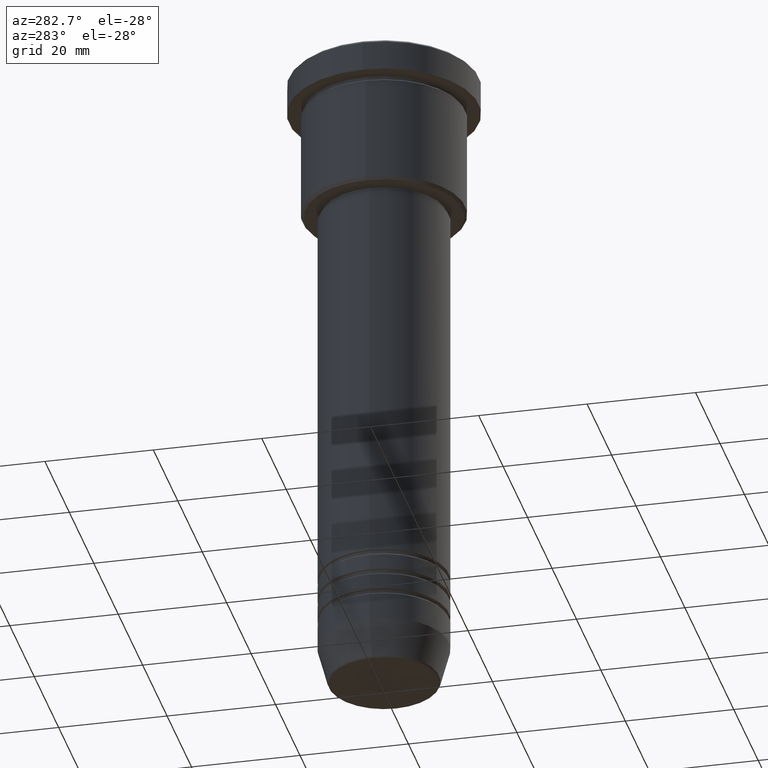
[diagram: clean part render]
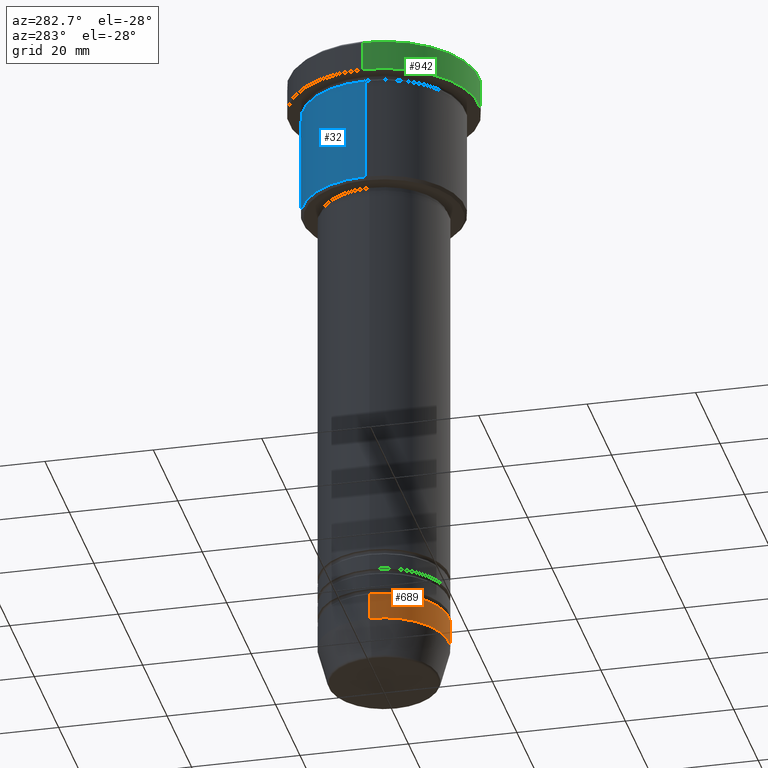
[diagram: same view with three faces highlighted in distinct colors, each labeled with its STEP entity id]
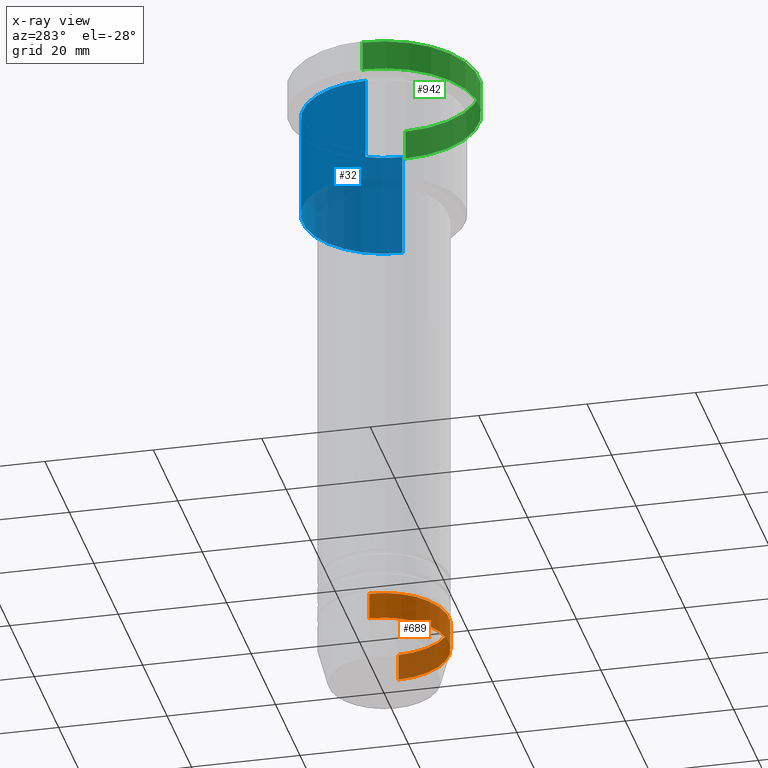
[diagram: x-ray of the same camera — body ghosted, the three highlighted faces saturated]
A machine part, auxiliary view with three faces highlighted in distinct colors.
The next image is the same camera in x-ray (body ghosted, the three faces saturated) — at least one of them is partly hidden behind the body in this view.
Their STEP definitions:

[orange] entity #689 — the highlighted cylindrical surface (partial cylindrical patch) has radius 12 mm, axis along (-0, -0, 1).
#13 = CARTESIAN_POINT ( 'NONE',  ( 0.000000000000000000, 0.000000000000000000, -115.0000000000000000 ) ) ;
#47 = EDGE_CURVE ( 'NONE', #1153, #135, #955, .T. ) ;
#76 = EDGE_CURVE ( 'NONE', #223, #233, #1120, .T. ) ;
#113 = CARTESIAN_POINT ( 'NONE',  ( -12.00000000000000000, 1.469576158976823947E-15, -115.0000000000000000 ) ) ;
#116 = AXIS2_PLACEMENT_3D ( 'NONE', #13, #914, #447 ) ;
#117 = VECTOR ( 'NONE', #609, 1000.000000000000000 ) ;
#135 = VERTEX_POINT ( 'NONE', #1179 ) ;
#223 = VERTEX_POINT ( 'NONE', #113 ) ;
#233 = VERTEX_POINT ( 'NONE', #391 ) ;
#279 = DIRECTION ( 'NONE',  ( -0.000000000000000000, -0.000000000000000000, 1.000000000000000000 ) ) ;
#349 = LINE ( 'NONE', #1095, #647 ) ;
#352 = DIRECTION ( 'NONE',  ( -0.000000000000000000, -0.000000000000000000, 1.000000000000000000 ) ) ;
#363 = CYLINDRICAL_SURFACE ( 'NONE', #371, 12.00000000000000000 ) ;
#371 = AXIS2_PLACEMENT_3D ( 'NONE', #452, #824, #904 ) ;
#391 = CARTESIAN_POINT ( 'NONE',  ( 12.00000000000000000, 0.000000000000000000, -115.0000000000000000 ) ) ;
#447 = DIRECTION ( 'NONE',  ( 1.000000000000000000, 0.000000000000000000, 0.000000000000000000 ) ) ;
#452 = CARTESIAN_POINT ( 'NONE',  ( 0.000000000000000000, 0.000000000000000000, 0.000000000000000000 ) ) ;
#529 = EDGE_LOOP ( 'NONE', ( #1170, #1137, #1057, #768 ) ) ;
#558 = EDGE_CURVE ( 'NONE', #233, #135, #1131, .T. ) ;
#609 = DIRECTION ( 'NONE',  ( -0.000000000000000000, -0.000000000000000000, 1.000000000000000000 ) ) ;
#647 = VECTOR ( 'NONE', #279, 1000.000000000000000 ) ;
#681 = AXIS2_PLACEMENT_3D ( 'NONE', #812, #352, #1011 ) ;
#689 = ADVANCED_FACE ( 'NONE', ( #728 ), #363, .T. ) ;
#728 = FACE_OUTER_BOUND ( 'NONE', #529, .T. ) ;
#732 = EDGE_CURVE ( 'NONE', #223, #1153, #349, .T. ) ;
#768 = ORIENTED_EDGE ( 'NONE', *, *, #47, .F. ) ;
#788 = CARTESIAN_POINT ( 'NONE',  ( 12.00000000000000000, 0.000000000000000000, 0.000000000000000000 ) ) ;
#812 = CARTESIAN_POINT ( 'NONE',  ( 0.000000000000000000, 0.000000000000000000, -110.0000000000000142 ) ) ;
#824 = DIRECTION ( 'NONE',  ( -0.000000000000000000, -0.000000000000000000, 1.000000000000000000 ) ) ;
#904 = DIRECTION ( 'NONE',  ( 1.000000000000000000, 0.000000000000000000, 0.000000000000000000 ) ) ;
#914 = DIRECTION ( 'NONE',  ( -0.000000000000000000, -0.000000000000000000, 1.000000000000000000 ) ) ;
#955 = CIRCLE ( 'NONE', #681, 12.00000000000000000 ) ;
#1011 = DIRECTION ( 'NONE',  ( 1.000000000000000000, 0.000000000000000000, 0.000000000000000000 ) ) ;
#1057 = ORIENTED_EDGE ( 'NONE', *, *, #558, .T. ) ;
#1095 = CARTESIAN_POINT ( 'NONE',  ( -12.00000000000000000, 1.469576158976823947E-15, 0.000000000000000000 ) ) ;
#1120 = CIRCLE ( 'NONE', #116, 12.00000000000000000 ) ;
#1131 = LINE ( 'NONE', #788, #117 ) ;
#1137 = ORIENTED_EDGE ( 'NONE', *, *, #76, .T. ) ;
#1139 = CARTESIAN_POINT ( 'NONE',  ( -12.00000000000000000, 1.469576158976823947E-15, -110.0000000000000142 ) ) ;
#1153 = VERTEX_POINT ( 'NONE', #1139 ) ;
#1170 = ORIENTED_EDGE ( 'NONE', *, *, #732, .F. ) ;
#1179 = CARTESIAN_POINT ( 'NONE',  ( 12.00000000000000000, 0.000000000000000000, -110.0000000000000142 ) ) ;

[blue] entity #32 — the highlighted cylindrical surface (partial cylindrical patch) has radius 15 mm, axis along (-0, -0, 1).
#2 = DIRECTION ( 'NONE',  ( -0.000000000000000000, -0.000000000000000000, 1.000000000000000000 ) ) ;
#9 = DIRECTION ( 'NONE',  ( -0.000000000000000000, -0.000000000000000000, 1.000000000000000000 ) ) ;
#32 = ADVANCED_FACE ( 'NONE', ( #1176 ), #462, .T. ) ;
#38 = ORIENTED_EDGE ( 'NONE', *, *, #986, .T. ) ;
#77 = LINE ( 'NONE', #1169, #256 ) ;
#170 = VERTEX_POINT ( 'NONE', #668 ) ;
#175 = VERTEX_POINT ( 'NONE', #760 ) ;
#186 = CARTESIAN_POINT ( 'NONE',  ( 0.000000000000000000, 0.000000000000000000, 0.000000000000000000 ) ) ;
#245 = ORIENTED_EDGE ( 'NONE', *, *, #764, .F. ) ;
#256 = VECTOR ( 'NONE', #539, 1000.000000000000000 ) ;
#276 = CIRCLE ( 'NONE', #393, 15.00000000000000000 ) ;
#277 = AXIS2_PLACEMENT_3D ( 'NONE', #543, #2, #547 ) ;
#303 = CIRCLE ( 'NONE', #277, 15.00000000000000000 ) ;
#368 = DIRECTION ( 'NONE',  ( 1.000000000000000000, 0.000000000000000000, 0.000000000000000000 ) ) ;
#385 = DIRECTION ( 'NONE',  ( -0.000000000000000000, -0.000000000000000000, 1.000000000000000000 ) ) ;
#393 = AXIS2_PLACEMENT_3D ( 'NONE', #589, #949, #565 ) ;
#462 = CYLINDRICAL_SURFACE ( 'NONE', #629, 15.00000000000000000 ) ;
#517 = ORIENTED_EDGE ( 'NONE', *, *, #993, .T. ) ;
#539 = DIRECTION ( 'NONE',  ( -0.000000000000000000, -0.000000000000000000, 1.000000000000000000 ) ) ;
#543 = CARTESIAN_POINT ( 'NONE',  ( 0.000000000000000000, 0.000000000000000000, -6.999999999999995559 ) ) ;
#547 = DIRECTION ( 'NONE',  ( 1.000000000000000000, 0.000000000000000000, 0.000000000000000000 ) ) ;
#565 = DIRECTION ( 'NONE',  ( -1.000000000000000000, 0.000000000000000000, 0.000000000000000000 ) ) ;
#577 = CARTESIAN_POINT ( 'NONE',  ( -15.00000000000000000, 1.836970198721029589E-15, 0.000000000000000000 ) ) ;
#589 = CARTESIAN_POINT ( 'NONE',  ( 0.000000000000000000, 0.000000000000000000, -26.49999999999998224 ) ) ;
#629 = AXIS2_PLACEMENT_3D ( 'NONE', #186, #9, #368 ) ;
#668 = CARTESIAN_POINT ( 'NONE',  ( 15.00000000000000000, 0.000000000000000000, -6.999999999999995559 ) ) ;
#752 = EDGE_LOOP ( 'NONE', ( #517, #38, #1061, #245 ) ) ;
#760 = CARTESIAN_POINT ( 'NONE',  ( -15.00000000000000000, 1.836970198721029589E-15, -6.999999999999995559 ) ) ;
#761 = LINE ( 'NONE', #577, #780 ) ;
#764 = EDGE_CURVE ( 'NONE', #789, #170, #77, .T. ) ;
#780 = VECTOR ( 'NONE', #385, 1000.000000000000000 ) ;
#789 = VERTEX_POINT ( 'NONE', #1000 ) ;
#949 = DIRECTION ( 'NONE',  ( -0.000000000000000000, -0.000000000000000000, 1.000000000000000000 ) ) ;
#978 = CARTESIAN_POINT ( 'NONE',  ( -15.00000000000000000, 1.836970198721029589E-15, -26.49999999999998224 ) ) ;
#986 = EDGE_CURVE ( 'NONE', #1157, #175, #761, .T. ) ;
#993 = EDGE_CURVE ( 'NONE', #789, #1157, #276, .T. ) ;
#1000 = CARTESIAN_POINT ( 'NONE',  ( 15.00000000000000000, 0.000000000000000000, -26.49999999999998224 ) ) ;
#1025 = EDGE_CURVE ( 'NONE', #170, #175, #303, .T. ) ;
#1061 = ORIENTED_EDGE ( 'NONE', *, *, #1025, .F. ) ;
#1157 = VERTEX_POINT ( 'NONE', #978 ) ;
#1169 = CARTESIAN_POINT ( 'NONE',  ( 15.00000000000000000, 0.000000000000000000, 0.000000000000000000 ) ) ;
#1176 = FACE_OUTER_BOUND ( 'NONE', #752, .T. ) ;

[green] entity #942 — the highlighted cylindrical surface (partial cylindrical patch) has radius 17.5 mm, axis along (-0, -0, 1).
#26 = VERTEX_POINT ( 'NONE', #1093 ) ;
#111 = CARTESIAN_POINT ( 'NONE',  ( 0.000000000000000000, 0.000000000000000000, -5.999999999999995559 ) ) ;
#261 = VERTEX_POINT ( 'NONE', #852 ) ;
#265 = CARTESIAN_POINT ( 'NONE',  ( 0.000000000000000000, 0.000000000000000000, 0.000000000000000000 ) ) ;
#333 = LINE ( 'NONE', #605, #1106 ) ;
#342 = CIRCLE ( 'NONE', #616, 17.50000000000000000 ) ;
#348 = LINE ( 'NONE', #937, #360 ) ;
#360 = VECTOR ( 'NONE', #875, 1000.000000000000000 ) ;
#381 = DIRECTION ( 'NONE',  ( -0.000000000000000000, -0.000000000000000000, 1.000000000000000000 ) ) ;
#386 = ORIENTED_EDGE ( 'NONE', *, *, #921, .T. ) ;
#390 = AXIS2_PLACEMENT_3D ( 'NONE', #524, #893, #430 ) ;
#423 = ORIENTED_EDGE ( 'NONE', *, *, #886, .F. ) ;
#430 = DIRECTION ( 'NONE',  ( 1.000000000000000000, 0.000000000000000000, 0.000000000000000000 ) ) ;
#508 = VERTEX_POINT ( 'NONE', #1022 ) ;
#516 = CIRCLE ( 'NONE', #390, 17.50000000000000000 ) ;
#524 = CARTESIAN_POINT ( 'NONE',  ( 0.000000000000000000, 0.000000000000000000, -0.5000000000000004441 ) ) ;
#537 = AXIS2_PLACEMENT_3D ( 'NONE', #265, #1112, #653 ) ;
#605 = CARTESIAN_POINT ( 'NONE',  ( -17.50000000000000000, 2.143131898507868248E-15, 0.000000000000000000 ) ) ;
#616 = AXIS2_PLACEMENT_3D ( 'NONE', #111, #381, #1040 ) ;
#619 = ORIENTED_EDGE ( 'NONE', *, *, #1138, .T. ) ;
#653 = DIRECTION ( 'NONE',  ( 1.000000000000000000, 0.000000000000000000, 0.000000000000000000 ) ) ;
#670 = VERTEX_POINT ( 'NONE', #881 ) ;
#722 = CYLINDRICAL_SURFACE ( 'NONE', #537, 17.50000000000000000 ) ;
#811 = FACE_OUTER_BOUND ( 'NONE', #877, .T. ) ;
#852 = CARTESIAN_POINT ( 'NONE',  ( 17.50000000000000000, 0.000000000000000000, -5.999999999999995559 ) ) ;
#875 = DIRECTION ( 'NONE',  ( -0.000000000000000000, -0.000000000000000000, 1.000000000000000000 ) ) ;
#877 = EDGE_LOOP ( 'NONE', ( #423, #891, #619, #386 ) ) ;
#881 = CARTESIAN_POINT ( 'NONE',  ( -17.50000000000000000, 2.143131898507868248E-15, -0.5000000000000004441 ) ) ;
#886 = EDGE_CURVE ( 'NONE', #26, #670, #333, .T. ) ;
#891 = ORIENTED_EDGE ( 'NONE', *, *, #1083, .T. ) ;
#893 = DIRECTION ( 'NONE',  ( 0.000000000000000000, 0.000000000000000000, -1.000000000000000000 ) ) ;
#921 = EDGE_CURVE ( 'NONE', #508, #670, #516, .T. ) ;
#937 = CARTESIAN_POINT ( 'NONE',  ( 17.50000000000000000, 0.000000000000000000, 0.000000000000000000 ) ) ;
#942 = ADVANCED_FACE ( 'NONE', ( #811 ), #722, .T. ) ;
#977 = DIRECTION ( 'NONE',  ( -0.000000000000000000, -0.000000000000000000, 1.000000000000000000 ) ) ;
#1022 = CARTESIAN_POINT ( 'NONE',  ( 17.50000000000000000, 0.000000000000000000, -0.5000000000000004441 ) ) ;
#1040 = DIRECTION ( 'NONE',  ( 1.000000000000000000, 0.000000000000000000, 0.000000000000000000 ) ) ;
#1083 = EDGE_CURVE ( 'NONE', #26, #261, #342, .T. ) ;
#1093 = CARTESIAN_POINT ( 'NONE',  ( -17.50000000000000000, 2.143131898507868248E-15, -5.999999999999995559 ) ) ;
#1106 = VECTOR ( 'NONE', #977, 1000.000000000000000 ) ;
#1112 = DIRECTION ( 'NONE',  ( -0.000000000000000000, -0.000000000000000000, 1.000000000000000000 ) ) ;
#1138 = EDGE_CURVE ( 'NONE', #261, #508, #348, .T. ) ;